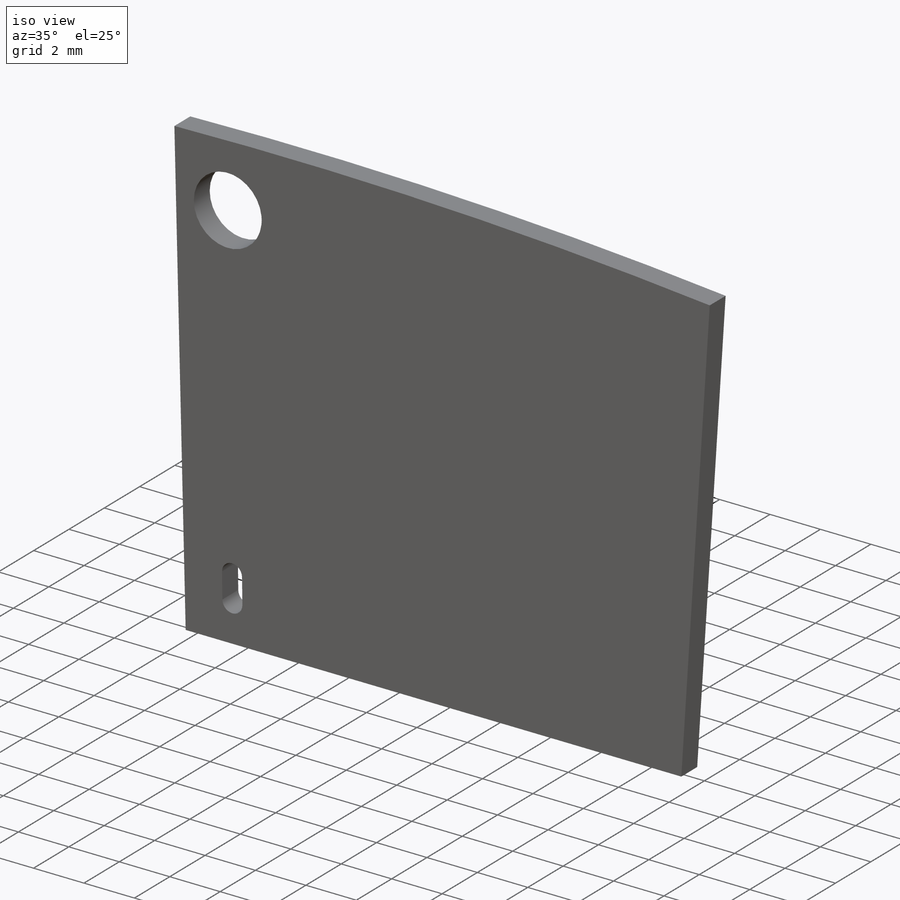
[diagram: iso view]
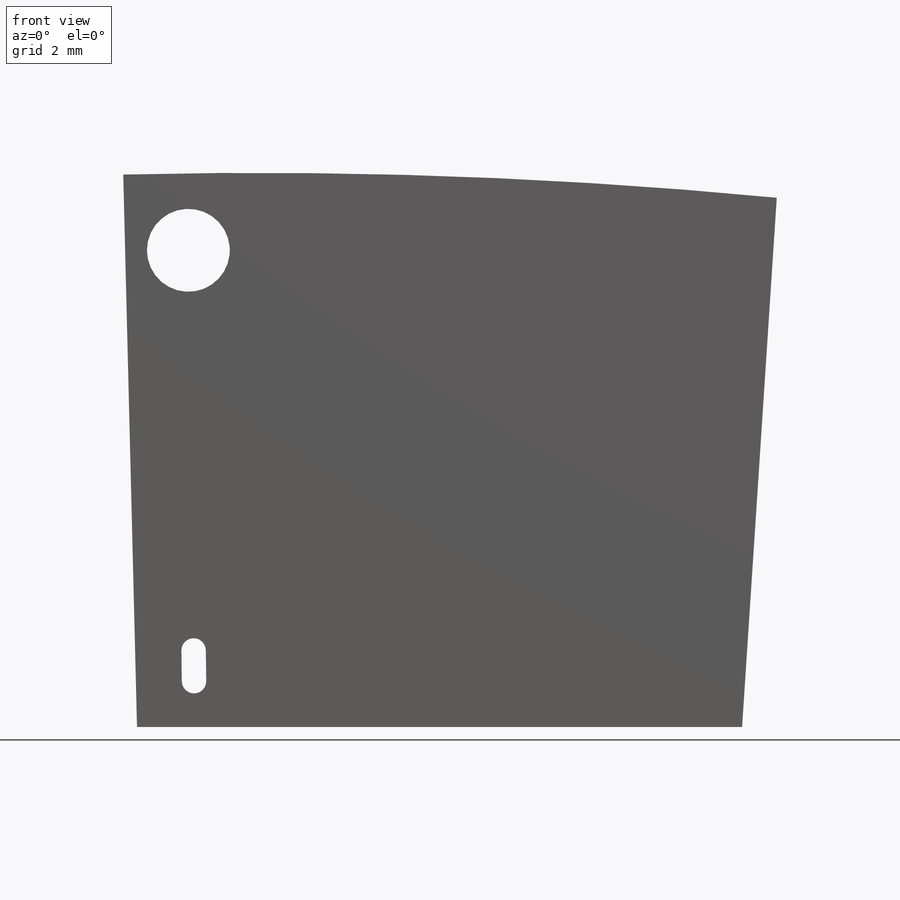
[diagram: front view]
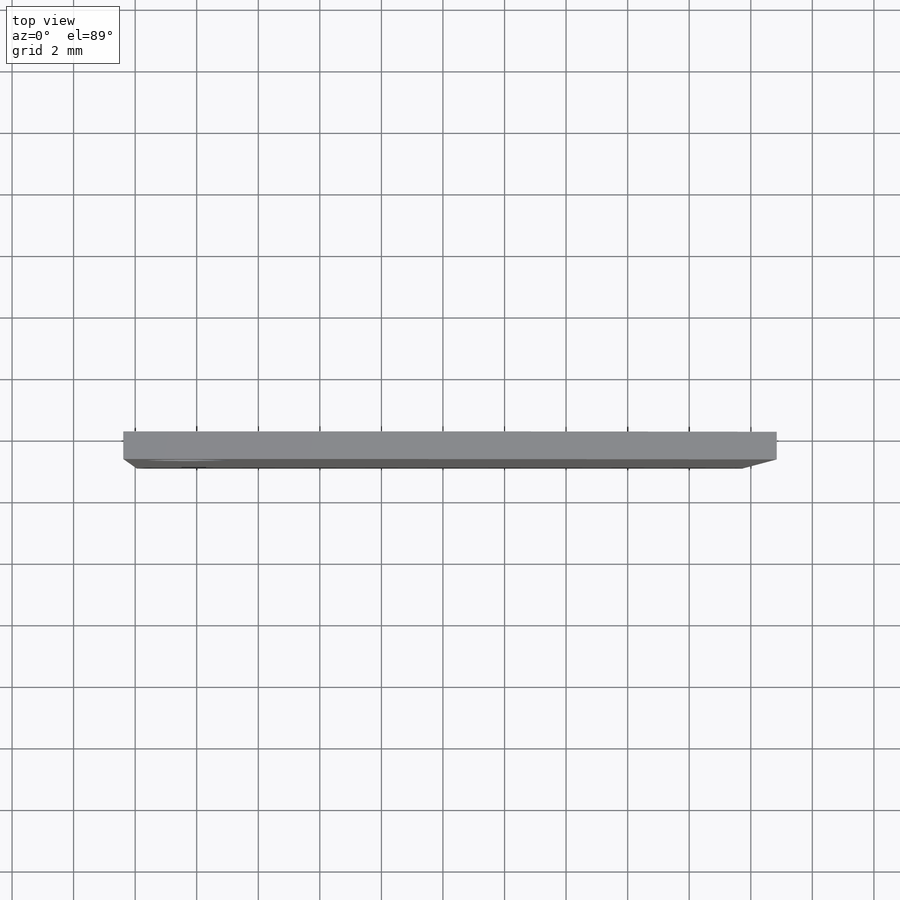
[diagram: top view]
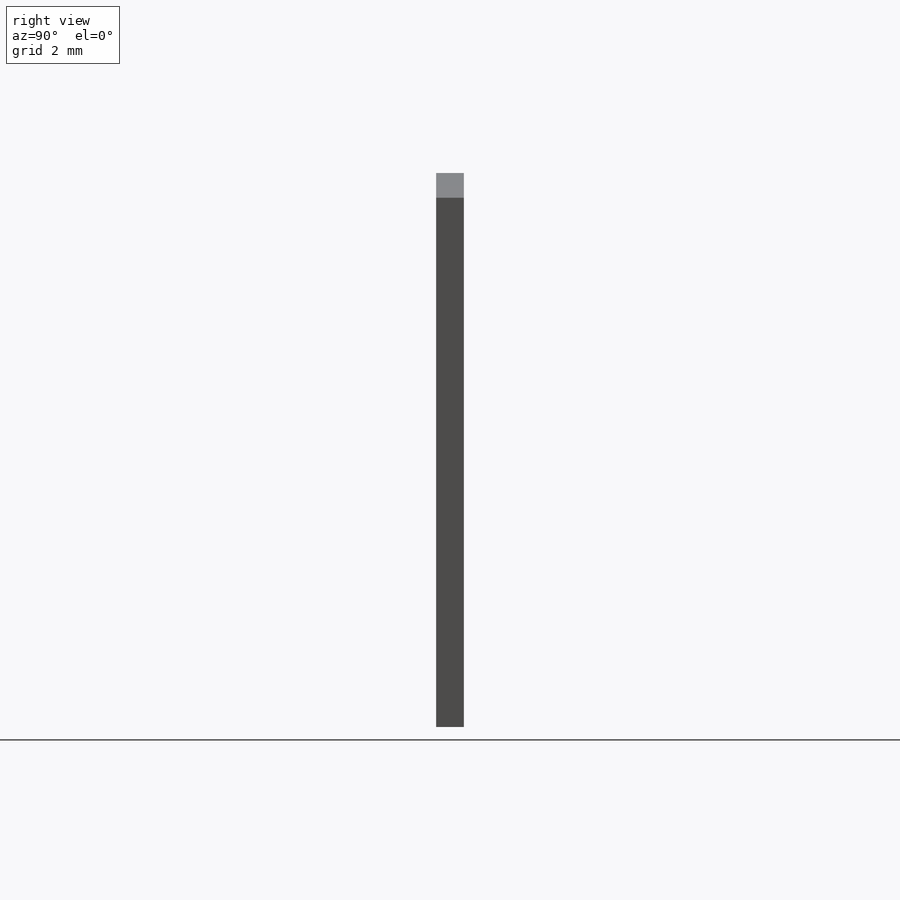
[diagram: right view]
SOLIDWORKS PART (.sldprt)
format: sldprt  version: not decoded by parser v0  size: 788,480 bytes
history: native  units: mm
features: sketch x6, cut_extrude x4, plane x3, extrude x2, material x1, fillet x1 + 2 further entries (+12 scaffold rows collapsed)
feature tree (31):
  scaffold x12  (default folders/planes/origin — collapsed)
  material  "Material <not specified>"
  plane  "Plane1"
  plane  "Plane2"
  plane  "Plane3"
  "Axis2"
  "Axis3"
  sketch  "Sketch1"  dims[c1.D2=~167.454764mm c1.D3=~162.692264mm c1.D1=~11.703236mm c2.D1=13.0deg c3.D1=~4.754802mm c4.D1=7.5deg c4.D4=~32.57004mm c4.D5=~171.739366mm c5.D5=7.5deg c5.D1=~5.110837mm c6.D1=7.5deg c6.D3=~5.110837mm c7.D1=~32.004125mm c7.D4=~5.110837mm c8.D4=7.5deg]
  extrude  "Extrude1"  Depth=4.9mm
  sketch  "Sketch2"  dims[c1.D1=5.0mm c1.D2=99.5mm c1.D3=1.1mm c2.D3=0.75deg c2.D4=158.0mm c2.D1=~8.646945mm c3.D1=~1.696173deg c3.D5=~5.210205mm]
  extrude  "Extrude2"  Depth=0.9mm
  sketch  "Sketch3"  dims[c1.D1=2.6924mm c1.D3=~0.79375mm c1.D2=173.5mm c1.D4=160.0mm c1.D5=1.0mm c1.D6=~147.994234mm c2.D6=0.75deg]
  cut_extrude  "Cut-Extrude2"  [1 undecoded]
  sketch  "Sketch4"  dims[D3=1.0mm D1=12.0mm D2=170.0mm]
  cut_extrude  "Extrude3"  [1 undecoded]
  sketch  "Sketch5"  dims[D1=1.0mm]
  cut_extrude  "Cut-Extrude3"  [1 undecoded]
  fillet  "Fillet1"  Radius=0.5mm
  sketch  "Sketch6"  dims[c1.D2=~3.939992mm c1.D3=~17.945304mm c2.D3=~1.428469deg c2.D1=0.0mm]
  cut_extrude  "Cut-Extrude4"  [1 undecoded]
decode coverage: 9 of 13 modeling features carry decoded parameters; 2 rows unclassified (native names shown)
note: ~ marks probable driven/reference dimensions
note: 4 parameter values undecoded
summary: no parameter record found for 4 features
note: suppression state not decoded; provenance and decode notes live in map.json
